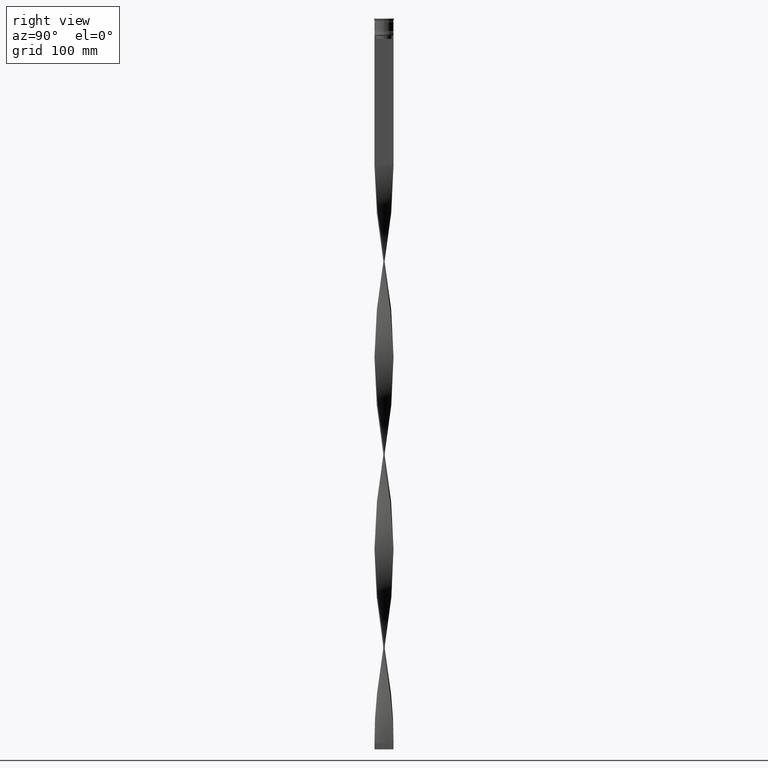
[diagram: clean part render]
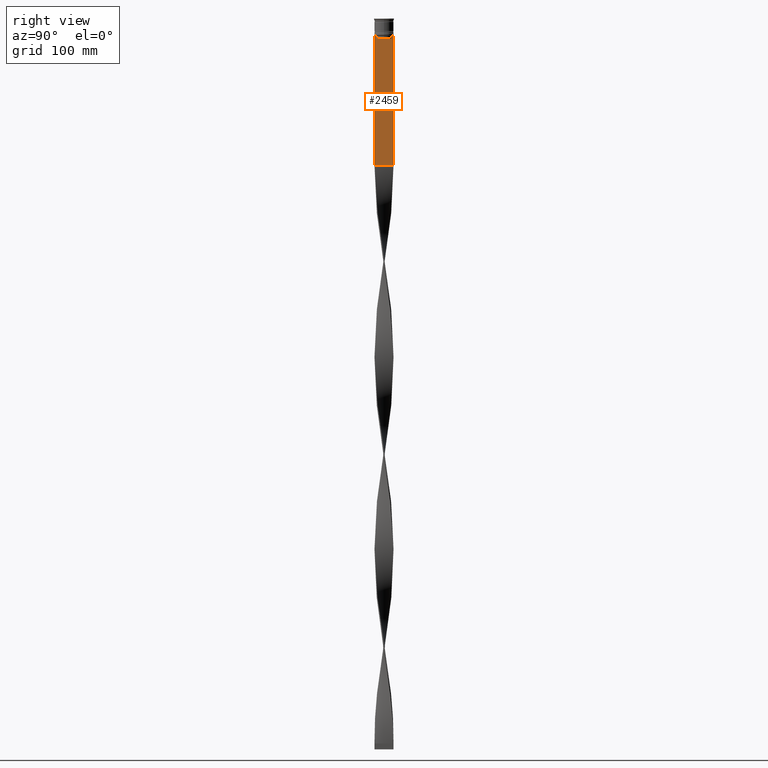
[diagram: same view with one face highlighted and labeled with its STEP entity id]
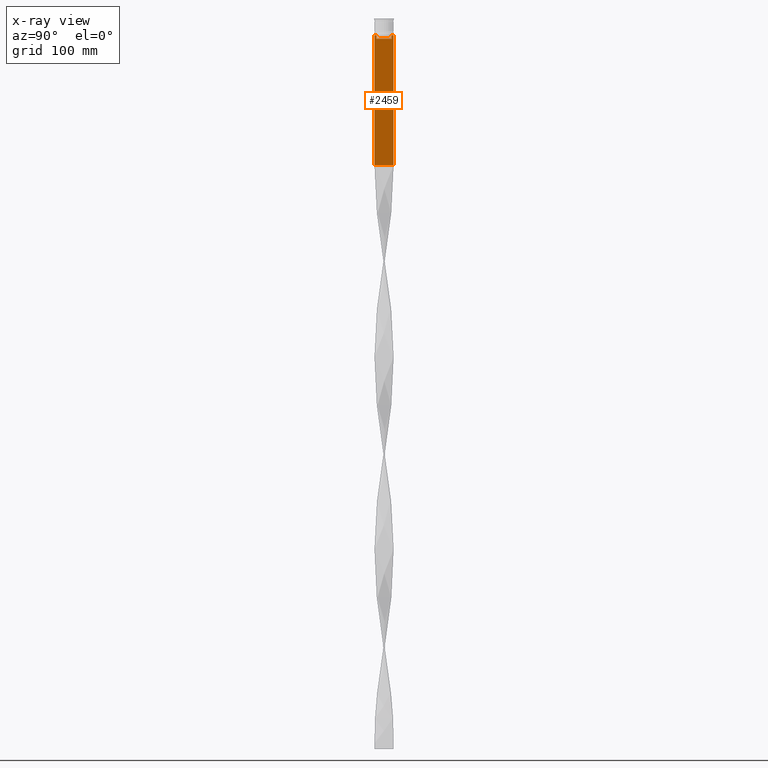
[diagram: x-ray of the same camera — body ghosted, the highlighted face saturated]
A machine part, right view. The second image highlights one B-rep face of the part: STEP entity #2459.
The next image is the same camera in x-ray: the body ghosted, the highlighted face saturated — about 0% of this face is hidden behind the body in this view.
In plain terms, the highlighted planar face has unit normal (-1, 0, 0).
Its self-contained STEP definition (entity closure, byte-faithful):
#99 = LINE ( 'NONE', #3092, #2275 ) ;
#123 = DIRECTION ( 'NONE',  ( 0.000000000000000000, -1.000000000000000000, 0.000000000000000000 ) ) ;
#161 = CARTESIAN_POINT ( 'NONE',  ( 0.5000000000000001110, -8.000000000000003553, -123.0000000000000000 ) ) ;
#169 = CARTESIAN_POINT ( 'NONE',  ( 0.5000000000000001110, -8.000000000000003553, -14.00000000000000178 ) ) ;
#227 = CARTESIAN_POINT ( 'NONE',  ( 0.5000000000000001110, 6.380438856379708312, -14.50000000000000000 ) ) ;
#235 = ORIENTED_EDGE ( 'NONE', *, *, #1979, .T. ) ;
#238 = VERTEX_POINT ( 'NONE', #1823 ) ;
#290 = VERTEX_POINT ( 'NONE', #161 ) ;
#296 = CARTESIAN_POINT ( 'NONE',  ( 0.5000000000000001110, -6.380438856379708312, 0.000000000000000000 ) ) ;
#300 = LINE ( 'NONE', #4057, #1072 ) ;
#316 = LINE ( 'NONE', #296, #1272 ) ;
#347 = CARTESIAN_POINT ( 'NONE',  ( 0.5000000000000001110, -8.000000000000003553, -14.00000000000000178 ) ) ;
#506 = EDGE_CURVE ( 'NONE', #238, #4221, #1636, .T. ) ;
#519 = CARTESIAN_POINT ( 'NONE',  ( 0.5000000000000001110, 7.999999999999996447, -123.0000000000000000 ) ) ;
#603 = CARTESIAN_POINT ( 'NONE',  ( 0.5000000000000001110, -6.547597841511247019, -14.33335192438652150 ) ) ;
#623 = DIRECTION ( 'NONE',  ( -1.000000000000000000, 0.000000000000000000, 0.000000000000000000 ) ) ;
#658 = VERTEX_POINT ( 'NONE', #2334 ) ;
#685 = DIRECTION ( 'NONE',  ( 0.000000000000000000, -1.000000000000000000, 0.000000000000000000 ) ) ;
#747 = DIRECTION ( 'NONE',  ( 0.000000000000000000, -1.000000000000000000, 0.000000000000000000 ) ) ;
#792 = ORIENTED_EDGE ( 'NONE', *, *, #3023, .T. ) ;
#927 = EDGE_CURVE ( 'NONE', #4465, #3958, #4155, .T. ) ;
#948 = CARTESIAN_POINT ( 'NONE',  ( 0.5000000000000001110, -6.714736947305993908, -14.16668390685738821 ) ) ;
#966 = VERTEX_POINT ( 'NONE', #1061 ) ;
#976 = EDGE_CURVE ( 'NONE', #4221, #4465, #3826, .T. ) ;
#1061 = CARTESIAN_POINT ( 'NONE',  ( 0.5000000000000001110, -8.000000000000003553, -14.00000000000000178 ) ) ;
#1072 = VECTOR ( 'NONE', #3418, 1000.000000000000000 ) ;
#1194 = EDGE_LOOP ( 'NONE', ( #2998, #4131, #2589, #2664, #235, #792, #3673, #1692, #3132, #4107, #1423, #1940 ) ) ;
#1222 = VECTOR ( 'NONE', #3966, 1000.000000000000000 ) ;
#1235 = CARTESIAN_POINT ( 'NONE',  ( 0.5000000000000001110, -8.000000000000003553, -123.0000000000000000 ) ) ;
#1237 = EDGE_CURVE ( 'NONE', #1945, #3289, #2823, .T. ) ;
#1265 = CARTESIAN_POINT ( 'NONE',  ( 0.5000000000000001110, 7.884161337770806632, -14.00000000000000178 ) ) ;
#1272 = VECTOR ( 'NONE', #3073, 1000.000000000000000 ) ;
#1279 = EDGE_CURVE ( 'NONE', #966, #290, #99, .T. ) ;
#1323 = FACE_OUTER_BOUND ( 'NONE', #1194, .T. ) ;
#1338 = VECTOR ( 'NONE', #685, 1000.000000000000000 ) ;
#1381 = DIRECTION ( 'NONE',  ( 0.000000000000000000, 0.000000000000000000, -1.000000000000000000 ) ) ;
#1410 = CARTESIAN_POINT ( 'NONE',  ( 0.5000000000000001110, 6.547597841304911626, -14.33335192459222718 ) ) ;
#1423 = ORIENTED_EDGE ( 'NONE', *, *, #3816, .F. ) ;
#1469 = EDGE_CURVE ( 'NONE', #2143, #4210, #1872, .T. ) ;
#1478 = VERTEX_POINT ( 'NONE', #519 ) ;
#1486 = VECTOR ( 'NONE', #123, 1000.000000000000000 ) ;
#1567 = CARTESIAN_POINT ( 'NONE',  ( 0.5000000000000001110, -8.000000000000003553, -14.00000000000000178 ) ) ;
#1591 = CARTESIAN_POINT ( 'NONE',  ( 0.5000000000000001110, -6.380438856379708312, -17.00000000000000000 ) ) ;
#1636 = LINE ( 'NONE', #347, #1338 ) ;
#1660 = CARTESIAN_POINT ( 'NONE',  ( 0.5000000000000001110, -6.380438856379708312, -14.50000000000000000 ) ) ;
#1673 = CARTESIAN_POINT ( 'NONE',  ( 0.5000000000000001110, 6.380438856379708312, -17.00000000000000000 ) ) ;
#1692 = ORIENTED_EDGE ( 'NONE', *, *, #1745, .T. ) ;
#1745 = EDGE_CURVE ( 'NONE', #4210, #966, #1897, .T. ) ;
#1823 = CARTESIAN_POINT ( 'NONE',  ( 0.5000000000000001110, 7.999999999999996447, -14.00000000000000178 ) ) ;
#1872 = LINE ( 'NONE', #1567, #1486 ) ;
#1897 = LINE ( 'NONE', #169, #2135 ) ;
#1940 = ORIENTED_EDGE ( 'NONE', *, *, #506, .T. ) ;
#1945 = VERTEX_POINT ( 'NONE', #1673 ) ;
#1979 = EDGE_CURVE ( 'NONE', #3289, #658, #316, .T. ) ;
#2107 = CARTESIAN_POINT ( 'NONE',  ( 0.5000000000000001110, 6.380438856379708312, -14.50000000000000000 ) ) ;
#2135 = VECTOR ( 'NONE', #3242, 1000.000000000000000 ) ;
#2143 = VERTEX_POINT ( 'NONE', #2375 ) ;
#2155 = CARTESIAN_POINT ( 'NONE',  ( 0.5000000000000001110, -8.000000000000003553, -14.00000000000000178 ) ) ;
#2275 = VECTOR ( 'NONE', #1381, 1000.000000000000000 ) ;
#2334 = CARTESIAN_POINT ( 'NONE',  ( 0.5000000000000001110, -6.380438856379708312, -14.50000000000000000 ) ) ;
#2375 = CARTESIAN_POINT ( 'NONE',  ( 0.5000000000000001110, -6.881860213634098500, -14.00000000000000178 ) ) ;
#2403 = CARTESIAN_POINT ( 'NONE',  ( 0.5000000000000001110, -6.881860213634098500, -14.00000000000000178 ) ) ;
#2451 = CARTESIAN_POINT ( 'NONE',  ( 0.5000000000000001110, 7.999999999999996447, 2.031219541881394530 ) ) ;
#2459 = ADVANCED_FACE ( 'NONE', ( #1323 ), #3712, .F. ) ;
#2483 = CARTESIAN_POINT ( 'NONE',  ( 0.5000000000000001110, 6.399999999999999467, -17.00000000000000000 ) ) ;
#2583 = EDGE_CURVE ( 'NONE', #3958, #1945, #300, .T. ) ;
#2589 = ORIENTED_EDGE ( 'NONE', *, *, #2583, .T. ) ;
#2664 = ORIENTED_EDGE ( 'NONE', *, *, #1237, .T. ) ;
#2693 = CARTESIAN_POINT ( 'NONE',  ( 0.5000000000000001110, -8.000000000000003553, 2.031219541881394530 ) ) ;
#2707 = VECTOR ( 'NONE', #747, 1000.000000000000000 ) ;
#2792 = LINE ( 'NONE', #2451, #3306 ) ;
#2809 = CARTESIAN_POINT ( 'NONE',  ( 0.5000000000000001110, 6.714736947114692711, -14.16668390704818847 ) ) ;
#2815 = DIRECTION ( 'NONE',  ( 0.000000000000000000, 0.000000000000000000, -1.000000000000000000 ) ) ;
#2823 = LINE ( 'NONE', #2483, #2707 ) ;
#2921 = LINE ( 'NONE', #1235, #1222 ) ;
#2976 = CARTESIAN_POINT ( 'NONE',  ( 0.5000000000000001110, -7.884161337770806632, -14.00000000000000178 ) ) ;
#2998 = ORIENTED_EDGE ( 'NONE', *, *, #976, .T. ) ;
#3023 = EDGE_CURVE ( 'NONE', #658, #2143, #3274, .T. ) ;
#3073 = DIRECTION ( 'NONE',  ( -0.000000000000000000, -0.000000000000000000, 1.000000000000000000 ) ) ;
#3092 = CARTESIAN_POINT ( 'NONE',  ( 0.5000000000000001110, -8.000000000000003553, 2.031219541881394530 ) ) ;
#3122 = CARTESIAN_POINT ( 'NONE',  ( 0.5000000000000001110, 6.881860213634098500, -14.00000000000000178 ) ) ;
#3132 = ORIENTED_EDGE ( 'NONE', *, *, #1279, .T. ) ;
#3242 = DIRECTION ( 'NONE',  ( 0.000000000000000000, -1.000000000000000000, 0.000000000000000000 ) ) ;
#3274 = B_SPLINE_CURVE_WITH_KNOTS ( 'NONE', 3,
 ( #1660, #603, #948, #2403 ),
 .UNSPECIFIED., .F., .F.,
 ( 4, 4 ),
 ( 0.02996184199614751464, 0.03067452609193705923 ),
 .UNSPECIFIED. ) ;
#3289 = VERTEX_POINT ( 'NONE', #1591 ) ;
#3306 = VECTOR ( 'NONE', #2815, 1000.000000000000000 ) ;
#3418 = DIRECTION ( 'NONE',  ( 0.000000000000000000, 0.000000000000000000, -1.000000000000000000 ) ) ;
#3531 = DIRECTION ( 'NONE',  ( 0.000000000000000000, -1.000000000000000000, 0.000000000000000000 ) ) ;
#3673 = ORIENTED_EDGE ( 'NONE', *, *, #1469, .T. ) ;
#3712 = PLANE ( 'NONE',  #4240 ) ;
#3738 = DIRECTION ( 'NONE',  ( 0.000000000000000000, 0.000000000000000000, 1.000000000000000000 ) ) ;
#3816 = EDGE_CURVE ( 'NONE', #238, #1478, #2792, .T. ) ;
#3826 = LINE ( 'NONE', #2155, #4082 ) ;
#3958 = VERTEX_POINT ( 'NONE', #227 ) ;
#3963 = EDGE_CURVE ( 'NONE', #290, #1478, #2921, .T. ) ;
#3966 = DIRECTION ( 'NONE',  ( 0.000000000000000000, 1.000000000000000000, 0.000000000000000000 ) ) ;
#4057 = CARTESIAN_POINT ( 'NONE',  ( 0.5000000000000001110, 6.380438856379708312, 0.000000000000000000 ) ) ;
#4082 = VECTOR ( 'NONE', #3531, 1000.000000000000000 ) ;
#4107 = ORIENTED_EDGE ( 'NONE', *, *, #3963, .T. ) ;
#4131 = ORIENTED_EDGE ( 'NONE', *, *, #927, .T. ) ;
#4155 = B_SPLINE_CURVE_WITH_KNOTS ( 'NONE', 3,
 ( #3122, #2809, #1410, #2107 ),
 .UNSPECIFIED., .F., .F.,
 ( 4, 4 ),
 ( 0.01172465562756038263, 0.01243276816391822651 ),
 .UNSPECIFIED. ) ;
#4210 = VERTEX_POINT ( 'NONE', #2976 ) ;
#4221 = VERTEX_POINT ( 'NONE', #1265 ) ;
#4240 = AXIS2_PLACEMENT_3D ( 'NONE', #2693, #623, #3738 ) ;
#4443 = CARTESIAN_POINT ( 'NONE',  ( 0.5000000000000001110, 6.881860213634098500, -14.00000000000000178 ) ) ;
#4465 = VERTEX_POINT ( 'NONE', #4443 ) ;